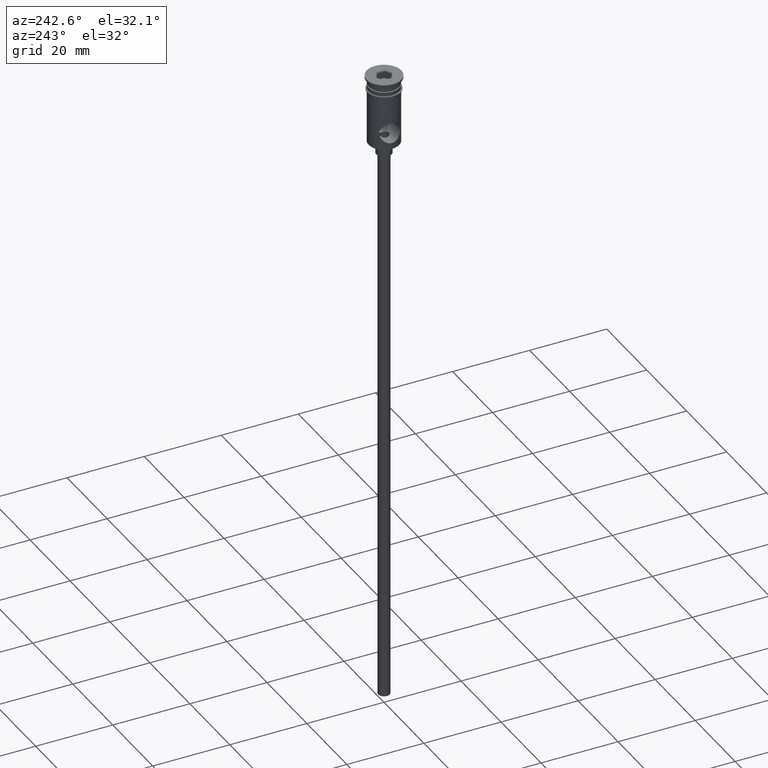
[diagram: clean part render]
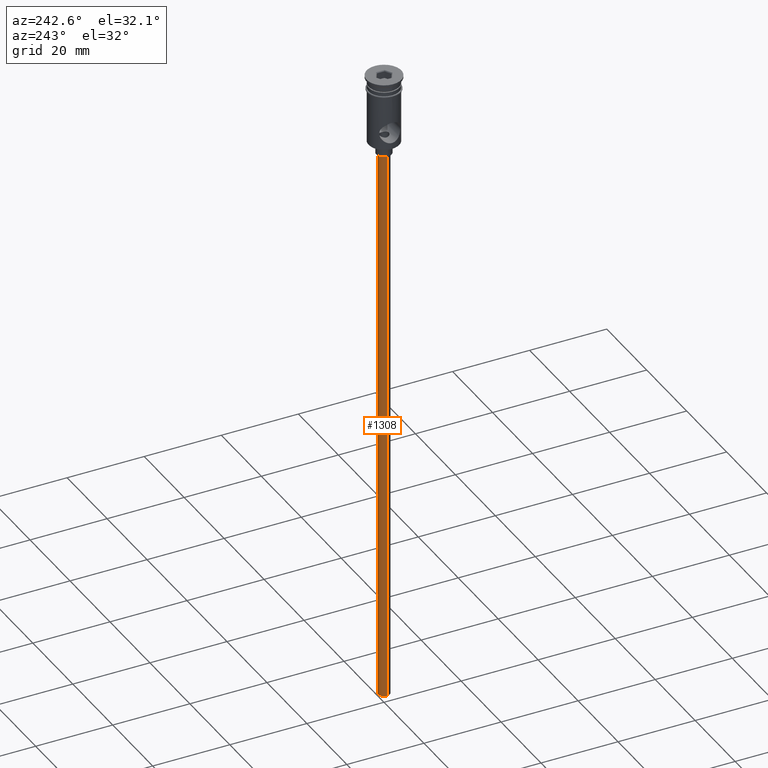
[diagram: same view with one face highlighted and labeled with its STEP entity id]
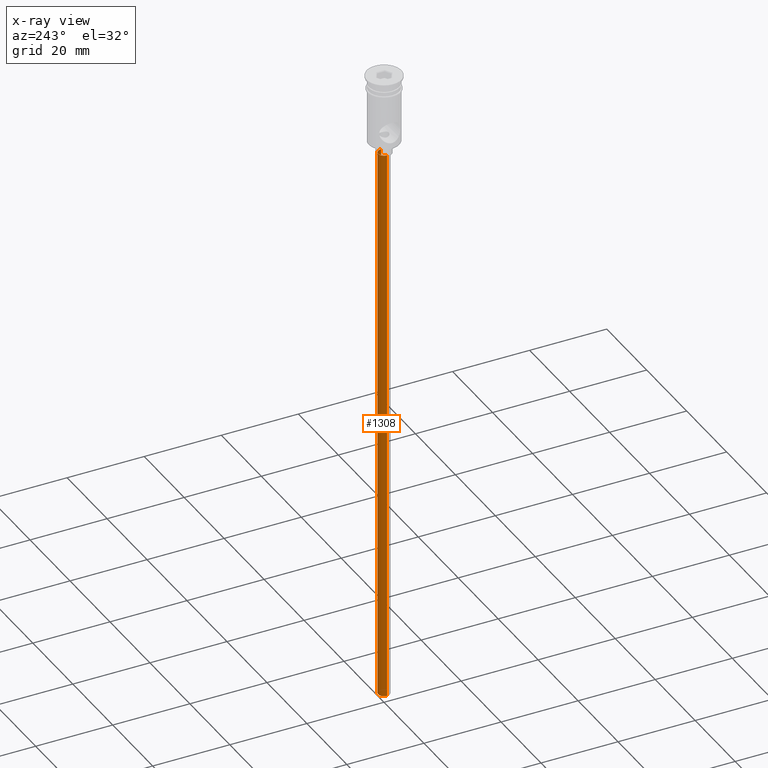
[diagram: x-ray of the same camera — body ghosted, the highlighted face saturated]
A machine part, auxiliary view. The second image highlights one B-rep face of the part: STEP entity #1308.
The next image is the same camera in x-ray: the body ghosted, the highlighted face saturated — about 0% of this face is hidden behind the body in this view.
In plain terms, the highlighted cylindrical surface (edge-blend (fillet) strip) has radius 1.5 mm, axis along (-0, -0, 1).
Its self-contained STEP definition (entity closure, byte-faithful):
#7 = DIRECTION ( 'NONE',  ( -1.000000000000000000, 0.000000000000000000, 0.000000000000000000 ) ) ;
#28 = CARTESIAN_POINT ( 'NONE',  ( 0.000000000000000000, 0.000000000000000000, -167.9999999999999716 ) ) ;
#124 = VERTEX_POINT ( 'NONE', #712 ) ;
#130 = VECTOR ( 'NONE', #1233, 1000.000000000000000 ) ;
#161 = VERTEX_POINT ( 'NONE', #594 ) ;
#256 = LINE ( 'NONE', #687, #592 ) ;
#321 = AXIS2_PLACEMENT_3D ( 'NONE', #640, #534, #661 ) ;
#325 = CARTESIAN_POINT ( 'NONE',  ( -1.500000000000000222, 1.836970198721030181E-16, -167.9999999999999716 ) ) ;
#392 = EDGE_CURVE ( 'NONE', #1257, #914, #1327, .T. ) ;
#396 = CIRCLE ( 'NONE', #711, 1.500000000000000222 ) ;
#454 = EDGE_CURVE ( 'NONE', #914, #124, #256, .T. ) ;
#523 = ORIENTED_EDGE ( 'NONE', *, *, #454, .F. ) ;
#534 = DIRECTION ( 'NONE',  ( -0.000000000000000000, -0.000000000000000000, 1.000000000000000000 ) ) ;
#535 = ORIENTED_EDGE ( 'NONE', *, *, #1137, .T. ) ;
#592 = VECTOR ( 'NONE', #1125, 1000.000000000000000 ) ;
#594 = CARTESIAN_POINT ( 'NONE',  ( -1.500000000000000222, 1.836970198721030181E-16, -20.99999999999999645 ) ) ;
#640 = CARTESIAN_POINT ( 'NONE',  ( 0.000000000000000000, 0.000000000000000000, -167.9999999999999716 ) ) ;
#661 = DIRECTION ( 'NONE',  ( 1.000000000000000000, 0.000000000000000000, 0.000000000000000000 ) ) ;
#687 = CARTESIAN_POINT ( 'NONE',  ( 1.500000000000000222, 0.000000000000000000, -167.9999999999999716 ) ) ;
#711 = AXIS2_PLACEMENT_3D ( 'NONE', #1317, #1216, #915 ) ;
#712 = CARTESIAN_POINT ( 'NONE',  ( 1.500000000000000222, 0.000000000000000000, -20.99999999999999645 ) ) ;
#876 = CYLINDRICAL_SURFACE ( 'NONE', #321, 1.500000000000000222 ) ;
#901 = CARTESIAN_POINT ( 'NONE',  ( -1.500000000000000222, 1.836970198721030181E-16, -167.9999999999999716 ) ) ;
#914 = VERTEX_POINT ( 'NONE', #1209 ) ;
#915 = DIRECTION ( 'NONE',  ( -1.000000000000000000, 0.000000000000000000, 0.000000000000000000 ) ) ;
#971 = ORIENTED_EDGE ( 'NONE', *, *, #1357, .T. ) ;
#983 = AXIS2_PLACEMENT_3D ( 'NONE', #28, #1321, #7 ) ;
#1031 = ORIENTED_EDGE ( 'NONE', *, *, #392, .F. ) ;
#1124 = LINE ( 'NONE', #901, #130 ) ;
#1125 = DIRECTION ( 'NONE',  ( -0.000000000000000000, -0.000000000000000000, 1.000000000000000000 ) ) ;
#1137 = EDGE_CURVE ( 'NONE', #1257, #161, #1124, .T. ) ;
#1209 = CARTESIAN_POINT ( 'NONE',  ( 1.500000000000000222, 0.000000000000000000, -167.9999999999999716 ) ) ;
#1215 = EDGE_LOOP ( 'NONE', ( #1031, #535, #971, #523 ) ) ;
#1216 = DIRECTION ( 'NONE',  ( 0.000000000000000000, 0.000000000000000000, -1.000000000000000000 ) ) ;
#1233 = DIRECTION ( 'NONE',  ( -0.000000000000000000, -0.000000000000000000, 1.000000000000000000 ) ) ;
#1257 = VERTEX_POINT ( 'NONE', #325 ) ;
#1308 = ADVANCED_FACE ( 'NONE', ( #1402 ), #876, .T. ) ;
#1317 = CARTESIAN_POINT ( 'NONE',  ( 0.000000000000000000, 0.000000000000000000, -20.99999999999999645 ) ) ;
#1321 = DIRECTION ( 'NONE',  ( 0.000000000000000000, 0.000000000000000000, -1.000000000000000000 ) ) ;
#1327 = CIRCLE ( 'NONE', #983, 1.500000000000000222 ) ;
#1357 = EDGE_CURVE ( 'NONE', #161, #124, #396, .T. ) ;
#1402 = FACE_OUTER_BOUND ( 'NONE', #1215, .T. ) ;